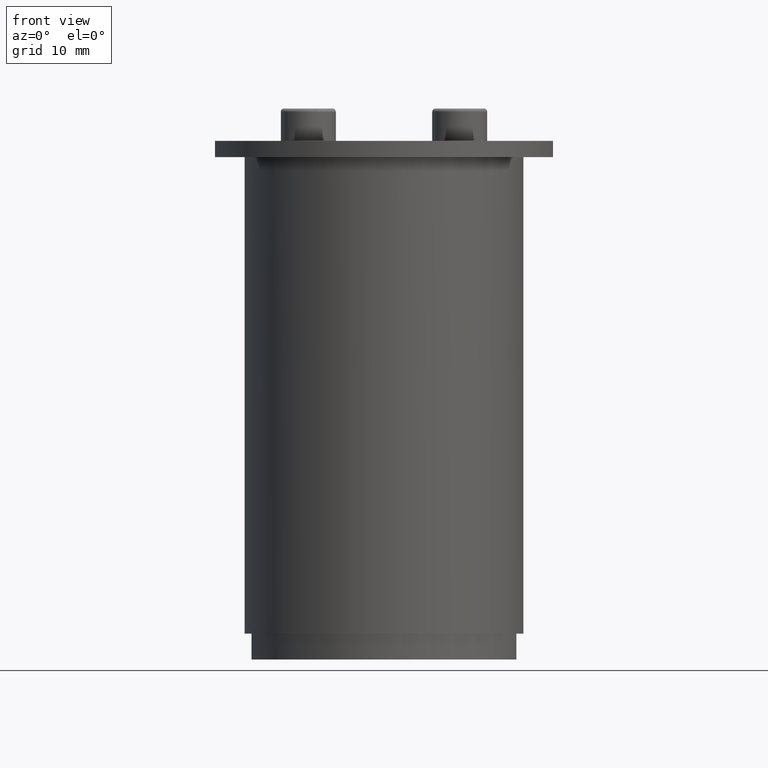
[diagram: clean part render]
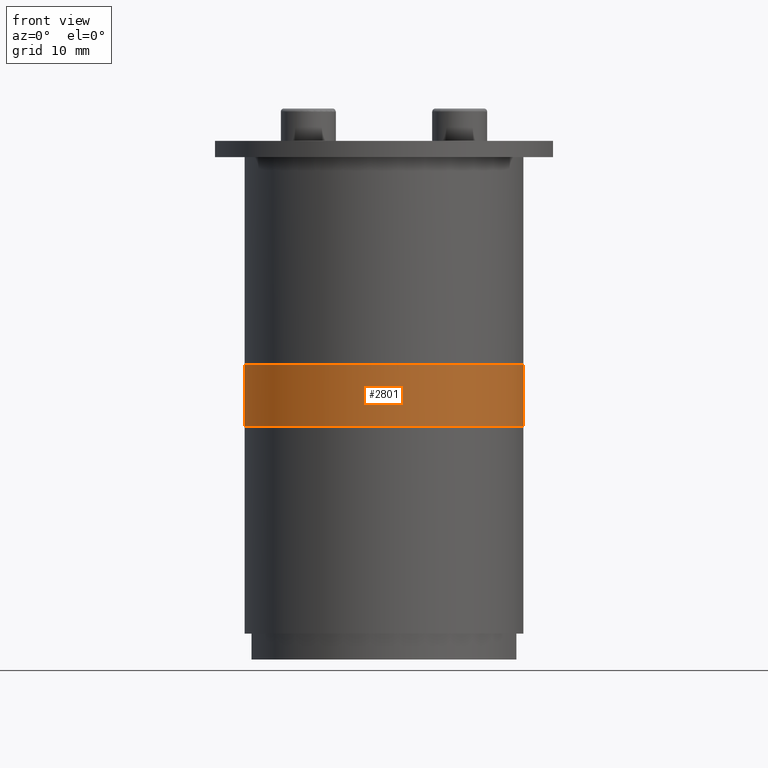
[diagram: same view with one face highlighted and labeled with its STEP entity id]
A machine part, front view. The second image highlights one B-rep face of the part: STEP entity #2801.
In plain terms, the highlighted cylindrical surface (partial cylindrical patch) has radius 21.5 mm, axis along (-0, 0, -1).
Its self-contained STEP definition (entity closure, byte-faithful):
#68=LINE('',#4293,#258);
#69=LINE('',#4296,#259);
#258=VECTOR('',#3379,10.);
#259=VECTOR('',#3382,10.);
#446=CYLINDRICAL_SURFACE('',#2997,21.5);
#494=FACE_OUTER_BOUND('',#664,.T.);
#664=EDGE_LOOP('',(#1706,#1707,#1708,#1709));
#846=CIRCLE('',#2998,21.5);
#847=CIRCLE('',#2999,21.5);
#1040=VERTEX_POINT('',#4289);
#1041=VERTEX_POINT('',#4290);
#1042=VERTEX_POINT('',#4292);
#1043=VERTEX_POINT('',#4294);
#1294=EDGE_CURVE('',#1040,#1041,#846,.T.);
#1295=EDGE_CURVE('',#1042,#1040,#68,.T.);
#1296=EDGE_CURVE('',#1043,#1042,#847,.T.);
#1297=EDGE_CURVE('',#1043,#1041,#69,.T.);
#1706=ORIENTED_EDGE('',*,*,#1294,.F.);
#1707=ORIENTED_EDGE('',*,*,#1295,.F.);
#1708=ORIENTED_EDGE('',*,*,#1296,.F.);
#1709=ORIENTED_EDGE('',*,*,#1297,.T.);
#2801=ADVANCED_FACE('',(#494),#446,.T.);
#2997=AXIS2_PLACEMENT_3D('',#4288,#3375,#3376);
#2998=AXIS2_PLACEMENT_3D('',#4291,#3377,#3378);
#2999=AXIS2_PLACEMENT_3D('',#4295,#3380,#3381);
#3375=DIRECTION('center_axis',(-4.67462326157958E-16,5.7247624145132E-32,
-1.));
#3376=DIRECTION('ref_axis',(1.,-1.22464679914735E-16,-4.67462326157958E-16));
#3377=DIRECTION('center_axis',(4.13106241720989E-16,-5.05909236631401E-32,
-1.));
#3378=DIRECTION('ref_axis',(-0.999729546986264,0.0232558139534885,0.));
#3379=DIRECTION('',(4.67462326157958E-16,0.,-1.));
#3380=DIRECTION('center_axis',(4.13106241720989E-16,-5.05909236631401E-32,
1.));
#3381=DIRECTION('ref_axis',(-0.999729546986264,0.0232558139534885,0.));
#3382=DIRECTION('',(4.67462326157958E-16,0.,-1.));
#4288=CARTESIAN_POINT('Origin',(6.9388939039076E-17,-8.49769420904352E-33,
-32.));
#4289=CARTESIAN_POINT('',(21.5,0.,-41.5));
#4290=CARTESIAN_POINT('',(-21.5,0.,-41.5));
#4291=CARTESIAN_POINT('Origin',(6.93889390390723E-17,-8.49769420904307E-33,
-41.5));
#4292=CARTESIAN_POINT('',(21.5,0.,-32.));
#4293=CARTESIAN_POINT('',(21.5,0.,-32.));
#4294=CARTESIAN_POINT('',(-21.5,0.,-32.));
#4295=CARTESIAN_POINT('Origin',(6.93889390390723E-17,-8.49769420904307E-33,
-32.));
#4296=CARTESIAN_POINT('',(-21.5,0.,-32.));